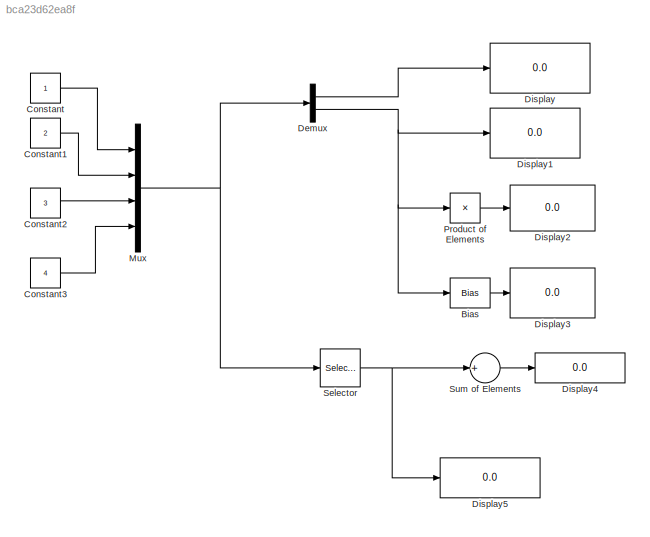
MODEL slx_bca23d62ea8f
KIND model
BLOCK [Bias] Bias
  Bias = 4
  SaturateOnIntegerOverflow = off
BLOCK [Constant] Constant
BLOCK [Constant] Constant1
  Value = 2
BLOCK [Constant] Constant2
  Value = 3
BLOCK [Constant] Constant3
  Value = 4
BLOCK [Demux] Demux
  DisplayOption = bar
  Outputs = 2
  Ports = [1, 2]
BLOCK [Display] Display
  Decimation = 2
  Format = long
  Ports = [1]
BLOCK [Display] Display1
  Decimation = 1
  Ports = [1]
BLOCK [Display] Display2
  Decimation = 1
  Ports = [1]
BLOCK [Display] Display3
  Decimation = 1
  Ports = [1]
BLOCK [Display] Display4
  Decimation = 1
  Ports = [1]
BLOCK [Display] Display5
  Decimation = 1
  Ports = [1]
BLOCK [Mux] Mux
  DisplayOption = signals
  Ports = [4, 1]
BLOCK [Product] Product of Elements
  InputSameDT = off
  Inputs = *
  OutDataTypeStr = Inherit: Inherit via internal rule
  Ports = [1, 1]
  RndMeth = Floor
  SaturateOnIntegerOverflow = off
BLOCK [Selector] Selector
  Indices = [2 4]
  InputPortWidth = 4
  Ports = [1, 1]
BLOCK [Sum] Sum of Elements
  InputSameDT = off
  Inputs = +
  OutDataTypeStr = Inherit: Inherit via internal rule
  Ports = [1, 1]
  SaturateOnIntegerOverflow = off
LINE Bias:1 -> Display3:1
LINE Constant1:1 -> Mux:2
LINE Constant2:1 -> Mux:3
LINE Constant3:1 -> Mux:4
LINE Constant:1 -> Mux:1
LINE Demux:1 -> Display:1
NET Demux:2 -> Bias:1, Display1:1, Product of Elements:1
NET Mux:1 -> Demux:1, Selector:1
LINE Product of Elements:1 -> Display2:1
NET Selector:1 -> Display5:1, Sum of Elements:1
LINE Sum of Elements:1 -> Display4:1
note: NET lines group one-source signal fan-out (src -> all destinations, sorted); 1:1 wires keep LINE
